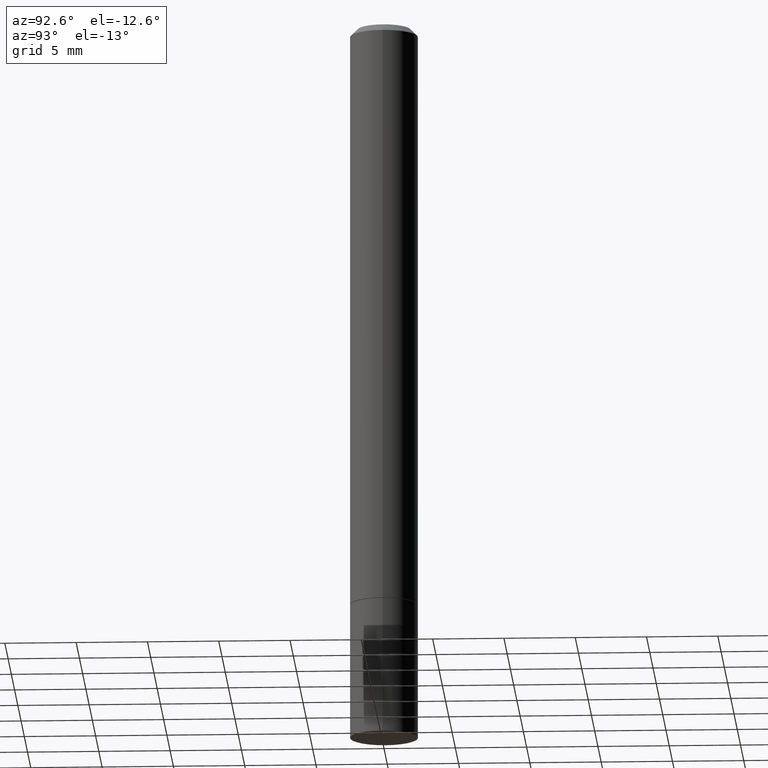
[diagram: clean part render]
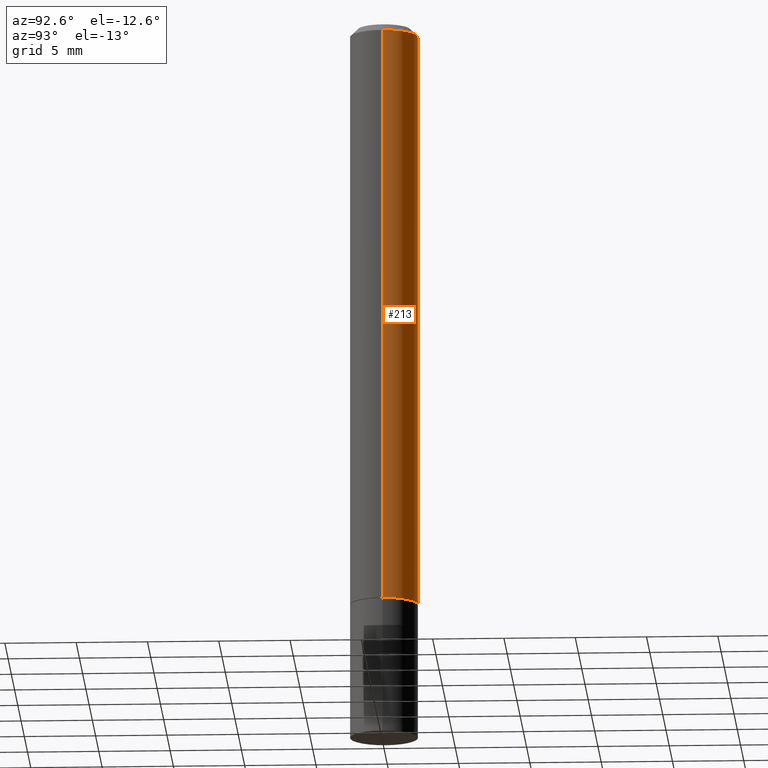
[diagram: same view with one face highlighted and labeled with its STEP entity id]
A machine part, auxiliary view. The second image highlights one B-rep face of the part: STEP entity #213.
In plain terms, the highlighted cylindrical surface (edge-blend (fillet) strip) has radius 2.3812 mm, axis along (-0, 0, 1).
Its self-contained STEP definition (entity closure, byte-faithful):
#12 = LINE ( 'NONE', #179, #211 ) ;
#21 = CARTESIAN_POINT ( 'NONE',  ( -0.09374999999999981959, 5.848231242562233185E-16, -0.02000000000000001429 ) ) ;
#24 = CIRCLE ( 'NONE', #301, 0.09375000000000001388 ) ;
#25 = ORIENTED_EDGE ( 'NONE', *, *, #104, .T. ) ;
#30 = CARTESIAN_POINT ( 'NONE',  ( 0.09374999999999991673, -6.546527510330869125E-16, 4.571415727308685602E-30 ) ) ;
#71 = DIRECTION ( 'NONE',  ( -2.445468806185136597E-29, 3.491481338843145583E-15, 1.000000000000000000 ) ) ;
#78 = LINE ( 'NONE', #30, #295 ) ;
#81 = VERTEX_POINT ( 'NONE', #207 ) ;
#84 = AXIS2_PLACEMENT_3D ( 'NONE', #336, #191, #306 ) ;
#88 = ORIENTED_EDGE ( 'NONE', *, *, #331, .T. ) ;
#90 = CIRCLE ( 'NONE', #84, 0.09374999999999981959 ) ;
#104 = EDGE_CURVE ( 'NONE', #81, #226, #12, .T. ) ;
#105 = CARTESIAN_POINT ( 'NONE',  ( 0.09375000000000001388, -6.324818445314355132E-15, -1.623999999999999888 ) ) ;
#106 = CARTESIAN_POINT ( 'NONE',  ( 0.000000000000000000, 0.000000000000000000, 0.000000000000000000 ) ) ;
#117 = DIRECTION ( 'NONE',  ( -2.445468806185136877E-29, 3.491481338843145188E-15, 1.000000000000000000 ) ) ;
#139 = ORIENTED_EDGE ( 'NONE', *, *, #320, .F. ) ;
#158 = FACE_OUTER_BOUND ( 'NONE', #346, .T. ) ;
#162 = CARTESIAN_POINT ( 'NONE',  ( 3.971441341244661927E-29, -5.670165694281268417E-15, -1.623999999999999888 ) ) ;
#171 = DIRECTION ( 'NONE',  ( -2.445468806185136877E-29, 3.491481338843145188E-15, 1.000000000000000000 ) ) ;
#179 = CARTESIAN_POINT ( 'NONE',  ( -0.09374999999999991673, 6.661338147750933326E-16, -4.611501647113969791E-30 ) ) ;
#191 = DIRECTION ( 'NONE',  ( -2.445468806185136597E-29, 3.491481338843145583E-15, 1.000000000000000000 ) ) ;
#192 = AXIS2_PLACEMENT_3D ( 'NONE', #106, #71, #281 ) ;
#204 = VERTEX_POINT ( 'NONE', #274 ) ;
#207 = CARTESIAN_POINT ( 'NONE',  ( -0.09375000000000001388, -2.203863845753969567E-15, -1.623999999999999888 ) ) ;
#211 = VECTOR ( 'NONE', #117, 39.37007874015748143 ) ;
#213 = ADVANCED_FACE ( 'NONE', ( #158 ), #364, .T. ) ;
#226 = VERTEX_POINT ( 'NONE', #21 ) ;
#251 = DIRECTION ( 'NONE',  ( -2.445468806185136597E-29, 3.491481338843145583E-15, 1.000000000000000000 ) ) ;
#257 = ORIENTED_EDGE ( 'NONE', *, *, #356, .F. ) ;
#274 = CARTESIAN_POINT ( 'NONE',  ( 0.09374999999999981959, -7.130013140679428044E-16, -0.02000000000000001429 ) ) ;
#281 = DIRECTION ( 'NONE',  ( 1.000000000000000000, -6.982962677686266711E-15, 4.876176775795935793E-29 ) ) ;
#285 = VERTEX_POINT ( 'NONE', #105 ) ;
#295 = VECTOR ( 'NONE', #171, 39.37007874015748143 ) ;
#301 = AXIS2_PLACEMENT_3D ( 'NONE', #162, #251, #363 ) ;
#306 = DIRECTION ( 'NONE',  ( 1.000000000000000000, -6.982962677686267499E-15, 0.000000000000000000 ) ) ;
#320 = EDGE_CURVE ( 'NONE', #204, #226, #90, .T. ) ;
#331 = EDGE_CURVE ( 'NONE', #285, #81, #24, .T. ) ;
#336 = CARTESIAN_POINT ( 'NONE',  ( 4.890937612370275786E-31, -6.982962677686296539E-17, -0.02000000000000001429 ) ) ;
#346 = EDGE_LOOP ( 'NONE', ( #88, #25, #139, #257 ) ) ;
#356 = EDGE_CURVE ( 'NONE', #285, #204, #78, .T. ) ;
#363 = DIRECTION ( 'NONE',  ( 1.000000000000000000, -6.982962677686261189E-15, 0.000000000000000000 ) ) ;
#364 = CYLINDRICAL_SURFACE ( 'NONE', #192, 0.09374999999999991673 ) ;